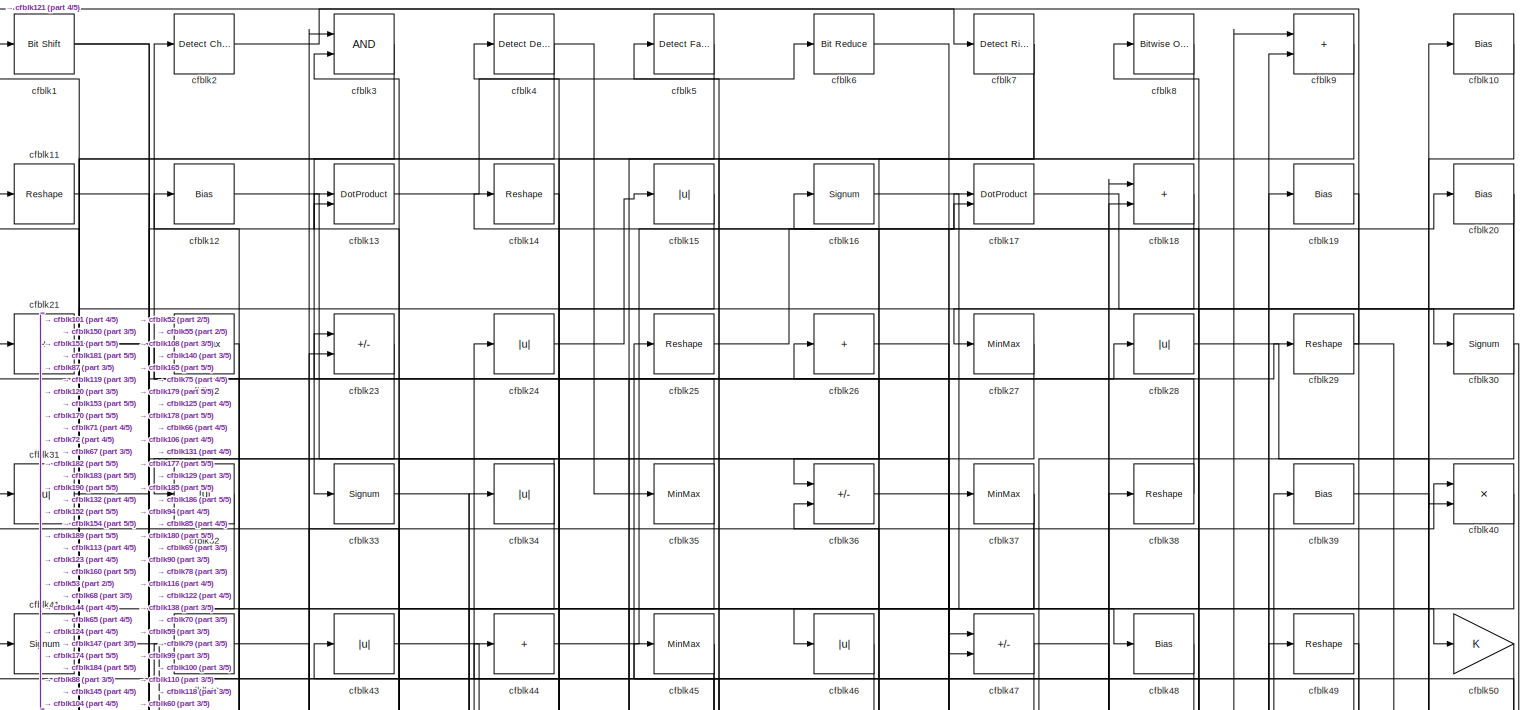
[diagram: root canvas - part 1/5, full width, top band]
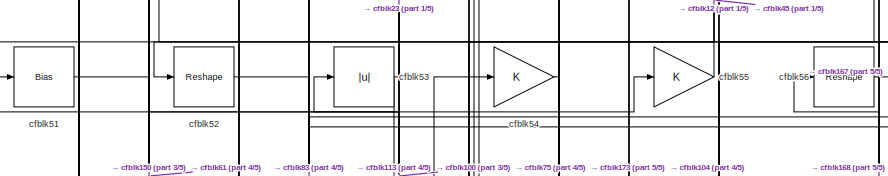
[diagram: root canvas - part 2/5, top left region]
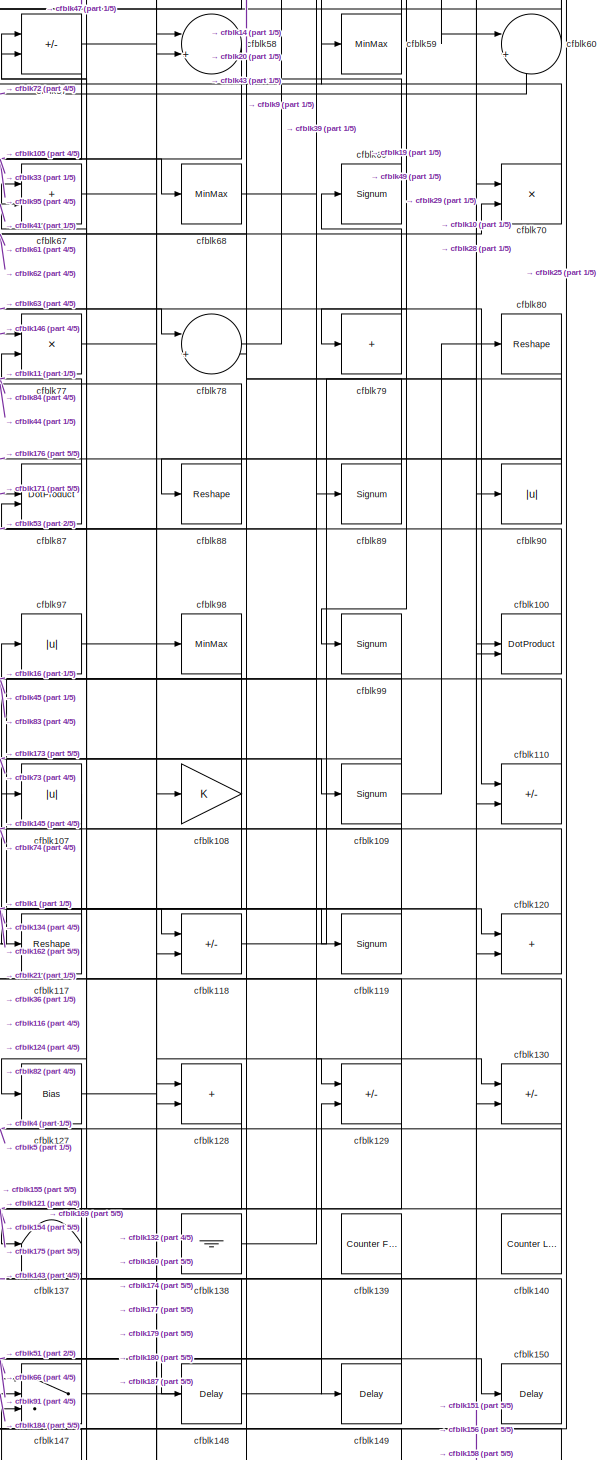
[diagram: root canvas - part 3/5, middle right region]
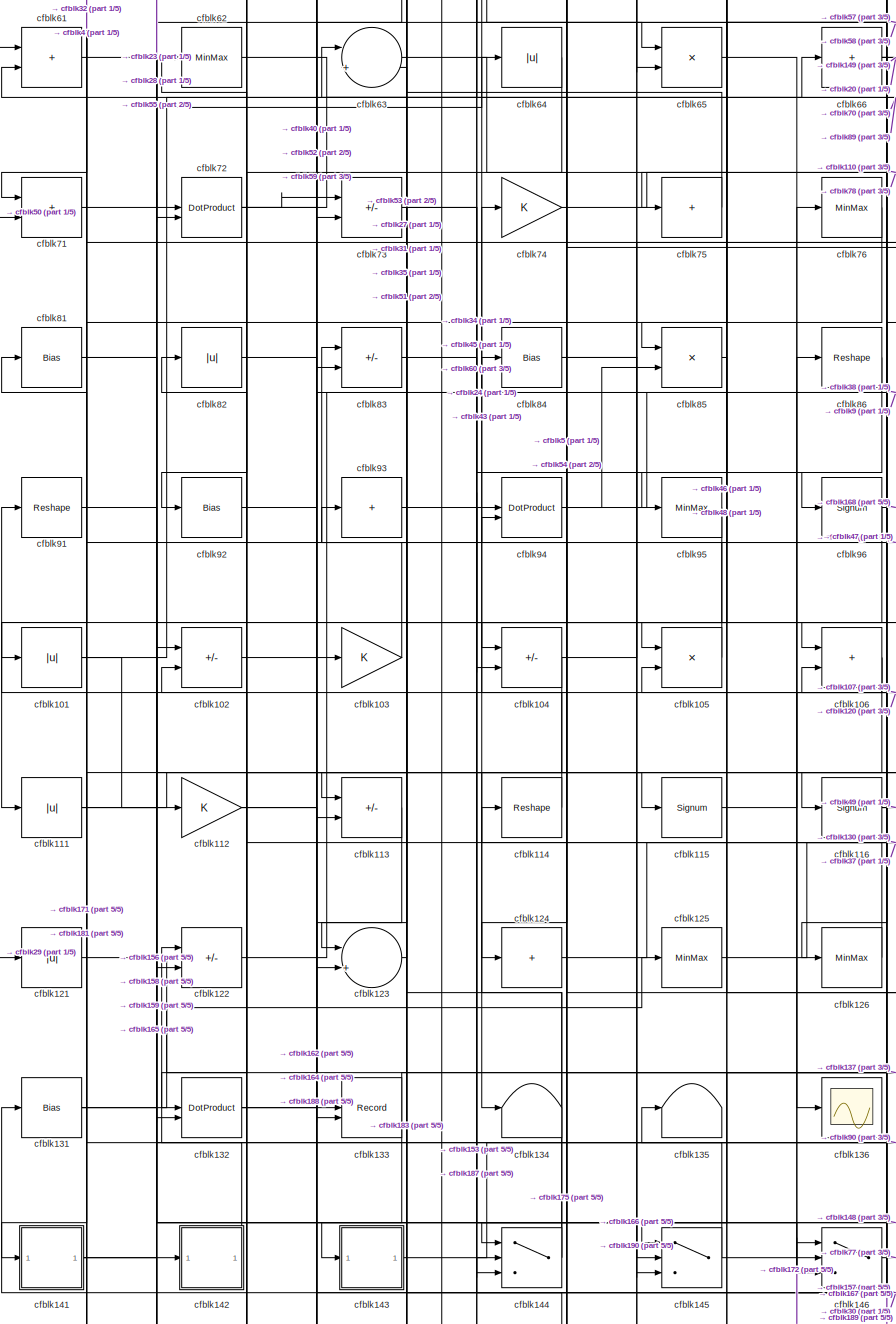
[diagram: root canvas - part 4/5, middle left region]
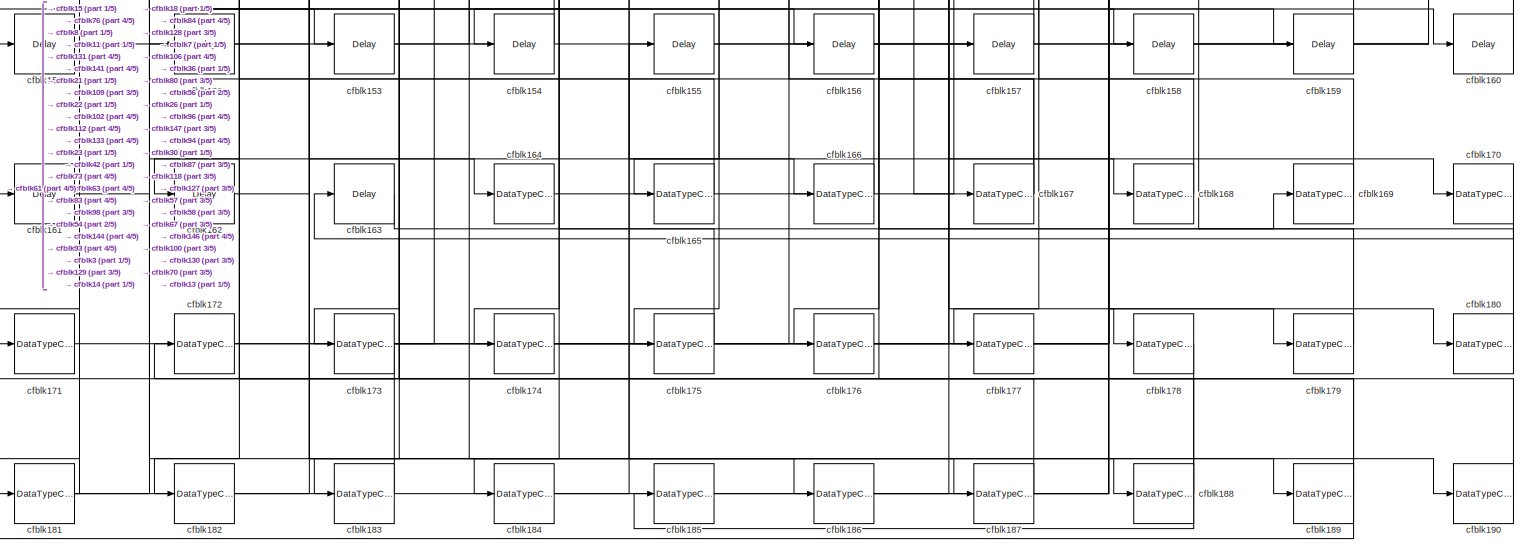
[diagram: root canvas - part 5/5, full width, bottom band]
MODEL slx_a682fed74f7d
KIND model
CONFIG AbsTol = auto
CONFIG EnableMultiTasking = off
CONFIG FixedStep = auto
CONFIG MaxStep = auto
CONFIG MinStep = auto
CONFIG RelTol = 1e-3
CONFIG SampleTimeConstraint = Unconstrained
CONFIG SolverName = VariableStepAuto
CONFIG StartTime = 0.0
CONFIG StopTime = 10.0
BLOCK [Reference] cfblk1  REF=hdlsllib/Logic and Bit
Operations/Bit Shift
  SourceBlock = hdlsllib/Logic and Bit\nOperations/Bit Shift
  SourceType = Bit Shift
BLOCK [Bias] cfblk10
  Bias = 0.0
  SaturateOnIntegerOverflow = off
BLOCK [DotProduct] cfblk100
  OutDataTypeStr = Inherit: Inherit via internal rule
BLOCK [Abs] cfblk101
  SaturateOnIntegerOverflow = off
BLOCK [Sum] cfblk102
  IconShape = rectangular
  Inputs = +-
BLOCK [Gain] cfblk103
BLOCK [Sum] cfblk104
  IconShape = rectangular
  Inputs = +-
BLOCK [Product] cfblk105
  Inputs = */
  RndMeth = Zero
  SaturateOnIntegerOverflow = on
BLOCK [Sum] cfblk106
  IconShape = rectangular
BLOCK [Abs] cfblk107
  SaturateOnIntegerOverflow = off
BLOCK [Gain] cfblk108
BLOCK [Signum] cfblk109
BLOCK [Reshape] cfblk11
BLOCK [Sum] cfblk110
  IconShape = rectangular
  Inputs = +-
BLOCK [Abs] cfblk111
  SaturateOnIntegerOverflow = off
BLOCK [Gain] cfblk112
BLOCK [Sum] cfblk113
  IconShape = rectangular
  Inputs = +-
BLOCK [Reshape] cfblk114
BLOCK [Signum] cfblk115
BLOCK [Signum] cfblk116
BLOCK [Reshape] cfblk117
BLOCK [Sum] cfblk118
  IconShape = rectangular
  Inputs = +-
BLOCK [Signum] cfblk119
BLOCK [Bias] cfblk12
  Bias = 0.0
  SaturateOnIntegerOverflow = off
BLOCK [Sum] cfblk120
  IconShape = rectangular
BLOCK [Abs] cfblk121
  SaturateOnIntegerOverflow = off
BLOCK [Sum] cfblk122
  IconShape = rectangular
  Inputs = +-
BLOCK [Sum] cfblk123
  Inputs = |++
BLOCK [Sum] cfblk124
  IconShape = rectangular
  Inputs = +
BLOCK [MinMax] cfblk125
BLOCK [MinMax] cfblk126
BLOCK [Bias] cfblk127
  Bias = 0.0
  SaturateOnIntegerOverflow = off
BLOCK [Sum] cfblk128
  IconShape = rectangular
BLOCK [Sum] cfblk129
  IconShape = rectangular
  Inputs = +-
BLOCK [DotProduct] cfblk13
  OutDataTypeStr = Inherit: Inherit via internal rule
BLOCK [Sum] cfblk130
  IconShape = rectangular
  Inputs = +-
BLOCK [Bias] cfblk131
  Bias = 0.0
  SaturateOnIntegerOverflow = off
BLOCK [DotProduct] cfblk132
  OutDataTypeStr = Inherit: Inherit via internal rule
BLOCK [Record] cfblk133
  CompatibilityTag = XY
  FileSettingsInternal = {"entries":[{"content":{"excelSettings":{"content":{},"type":"Streamout.ExcelSettings"}},"type":"Streamout.FileSettingStorage","uuid":""}],"packageUris":["http:\/\/schema.mathworks.com\/mf0\/streamout_blocks\/R2020a"],"version":"1.0"}
  Layout = [1 1]
  SignalsInternal = {"entries":[{"content":{"signals":[{"content":{"blockPath":[],"dimensions":[1],"domain":"","lineColor":"#a2142f","plots":[1],"port":1,"signalID":4129,"signalName":"XY Graph:1"},"type":"RecordBlkView.Signal","uuid":""},{"content":{"blockPath":[],"dimensions":[1],"domain":"","lineColor":"#139fff","plots":[1],"port":2,"signalID":4132,"signalName":"XY Graph:2"},"type":"RecordBlkView.Signal","uuid":""}...<+146ch>
  VisualizationBindings = {"xyplotplugin":{"info":[{"series":[{"bindingParametersList":[{"parameter":"X-Axis","signalID":4129,"signalName":"XY Graph:1"},{"parameter":"Y-Axis","signalID":4132,"signalName":"XY Graph:2"}],"seriesID":53244}],"subplotID":1}]}}
  st = -1
BLOCK [Terminator] cfblk134
BLOCK [Terminator] cfblk135
BLOCK [Scope] cfblk136
  Floating = off
  NumInputPorts = 1
  ScopeSpecificationString = Simulink.scopes.TimeScopeBlockCfg('CurrentConfiguration', extmgr.ConfigurationSet(extmgr.Configuration('Core','General UI',true),extmgr.Configuration('Core','Source UI',true),extmgr.Configuration('Sources','WiredSimulink',true,'DataLoggingVariableName','ScopeData2','DataLoggingSaveFormat','Array','DataLoggingLimitDataPoints',true,'DataLoggingDecimation','1'),extmgr.Configuration('Visuals','Time Do...<+868ch>
BLOCK [Terminator] cfblk137
BLOCK [Ground] cfblk138
BLOCK [Reference] cfblk139  REF=hdlsllib/Sources/Counter
Free-Running
  SourceBlock = hdlsllib/Sources/Counter\nFree-Running
  SourceType = Counter Free-Running
BLOCK [Reshape] cfblk14
BLOCK [Reference] cfblk140  REF=hdlsllib/Sources/Counter
Limited
  SourceBlock = hdlsllib/Sources/Counter\nLimited
  SourceType = Counter Limited
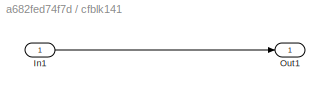
BLOCK [SubSystem] cfblk141
  LibrarySourceBlock = hdlsllib/Ports &\nSubsystems/Subsystem
BLOCK [Inport] cfblk141/In1
BLOCK [Outport] cfblk141/Out1
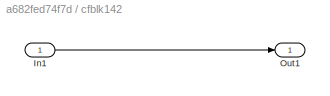
BLOCK [SubSystem] cfblk142
  LibrarySourceBlock = hdlsllib/Ports &\nSubsystems/Subsystem
BLOCK [Inport] cfblk142/In1
BLOCK [Outport] cfblk142/Out1
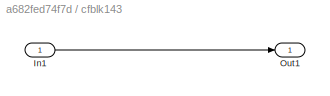
BLOCK [SubSystem] cfblk143
  LibrarySourceBlock = hdlsllib/Ports &\nSubsystems/Subsystem
BLOCK [Inport] cfblk143/In1
BLOCK [Outport] cfblk143/Out1
BLOCK [Switch] cfblk144
  InputSameDT = off
  SaturateOnIntegerOverflow = off
BLOCK [Switch] cfblk145
  InputSameDT = off
  SaturateOnIntegerOverflow = off
BLOCK [Switch] cfblk146
  InputSameDT = off
  SaturateOnIntegerOverflow = off
BLOCK [Switch] cfblk147
  InputSameDT = off
  SaturateOnIntegerOverflow = off
BLOCK [Delay] cfblk148
  InputPortMap = u0
  SampleTime = 1
BLOCK [Delay] cfblk149
  InputPortMap = u0
  SampleTime = 1
BLOCK [Abs] cfblk15
  SaturateOnIntegerOverflow = off
BLOCK [Delay] cfblk150
  InputPortMap = u0
  SampleTime = 1
BLOCK [Delay] cfblk151
  InputPortMap = u0
  SampleTime = 1
BLOCK [Delay] cfblk152
  InputPortMap = u0
  SampleTime = 1
BLOCK [Delay] cfblk153
  InputPortMap = u0
  SampleTime = 1
BLOCK [Delay] cfblk154
  InputPortMap = u0
  SampleTime = 1
BLOCK [Delay] cfblk155
  InputPortMap = u0
  SampleTime = 1
BLOCK [Delay] cfblk156
  InputPortMap = u0
  SampleTime = 1
BLOCK [Delay] cfblk157
  InputPortMap = u0
  SampleTime = 1
BLOCK [Delay] cfblk158
  InputPortMap = u0
  SampleTime = 1
BLOCK [Delay] cfblk159
  InputPortMap = u0
  SampleTime = 1
BLOCK [Signum] cfblk16
BLOCK [Delay] cfblk160
  InputPortMap = u0
  SampleTime = 1
BLOCK [Delay] cfblk161
  InputPortMap = u0
  SampleTime = 1
BLOCK [Delay] cfblk162
  InputPortMap = u0
  SampleTime = 1
BLOCK [Delay] cfblk163
  InputPortMap = u0
  SampleTime = 1
BLOCK [DataTypeConversion] cfblk164
  OutDataTypeStr = uint8
  RndMeth = Floor
  SaturateOnIntegerOverflow = off
BLOCK [DataTypeConversion] cfblk165
  OutDataTypeStr = uint8
  RndMeth = Floor
  SaturateOnIntegerOverflow = off
BLOCK [DataTypeConversion] cfblk166
  OutDataTypeStr = uint8
  RndMeth = Floor
  SaturateOnIntegerOverflow = off
BLOCK [DataTypeConversion] cfblk167
  RndMeth = Floor
  SaturateOnIntegerOverflow = off
BLOCK [DataTypeConversion] cfblk168
  OutDataTypeStr = uint8
  RndMeth = Floor
  SaturateOnIntegerOverflow = off
BLOCK [DataTypeConversion] cfblk169
  OutDataTypeStr = uint8
  RndMeth = Floor
  SaturateOnIntegerOverflow = off
BLOCK [DotProduct] cfblk17
  OutDataTypeStr = Inherit: Inherit via internal rule
BLOCK [DataTypeConversion] cfblk170
  OutDataTypeStr = uint8
  RndMeth = Floor
  SaturateOnIntegerOverflow = off
BLOCK [DataTypeConversion] cfblk171
  OutDataTypeStr = uint8
  RndMeth = Floor
  SaturateOnIntegerOverflow = off
BLOCK [DataTypeConversion] cfblk172
  OutDataTypeStr = uint8
  RndMeth = Floor
  SaturateOnIntegerOverflow = off
BLOCK [DataTypeConversion] cfblk173
  RndMeth = Floor
  SaturateOnIntegerOverflow = off
BLOCK [DataTypeConversion] cfblk174
  OutDataTypeStr = uint8
  RndMeth = Floor
  SaturateOnIntegerOverflow = off
BLOCK [DataTypeConversion] cfblk175
  OutDataTypeStr = uint8
  RndMeth = Floor
  SaturateOnIntegerOverflow = off
BLOCK [DataTypeConversion] cfblk176
  OutDataTypeStr = uint8
  RndMeth = Floor
  SaturateOnIntegerOverflow = off
BLOCK [DataTypeConversion] cfblk177
  OutDataTypeStr = uint8
  RndMeth = Floor
  SaturateOnIntegerOverflow = off
BLOCK [DataTypeConversion] cfblk178
  OutDataTypeStr = uint8
  RndMeth = Floor
  SaturateOnIntegerOverflow = off
BLOCK [DataTypeConversion] cfblk179
  OutDataTypeStr = uint8
  RndMeth = Floor
  SaturateOnIntegerOverflow = off
BLOCK [Sum] cfblk18
  IconShape = rectangular
BLOCK [DataTypeConversion] cfblk180
  OutDataTypeStr = boolean
  RndMeth = Floor
  SaturateOnIntegerOverflow = off
BLOCK [DataTypeConversion] cfblk181
  RndMeth = Floor
  SaturateOnIntegerOverflow = off
BLOCK [DataTypeConversion] cfblk182
  OutDataTypeStr = uint8
  RndMeth = Floor
  SaturateOnIntegerOverflow = off
BLOCK [DataTypeConversion] cfblk183
  OutDataTypeStr = uint8
  RndMeth = Floor
  SaturateOnIntegerOverflow = off
BLOCK [DataTypeConversion] cfblk184
  OutDataTypeStr = uint8
  RndMeth = Floor
  SaturateOnIntegerOverflow = off
BLOCK [DataTypeConversion] cfblk185
  OutDataTypeStr = uint8
  RndMeth = Floor
  SaturateOnIntegerOverflow = off
BLOCK [DataTypeConversion] cfblk186
  OutDataTypeStr = uint8
  RndMeth = Floor
  SaturateOnIntegerOverflow = off
BLOCK [DataTypeConversion] cfblk187
  RndMeth = Floor
  SaturateOnIntegerOverflow = off
BLOCK [DataTypeConversion] cfblk188
  OutDataTypeStr = uint8
  RndMeth = Floor
  SaturateOnIntegerOverflow = off
BLOCK [DataTypeConversion] cfblk189
  RndMeth = Floor
  SaturateOnIntegerOverflow = off
BLOCK [Bias] cfblk19
  Bias = 0.0
  SaturateOnIntegerOverflow = off
BLOCK [DataTypeConversion] cfblk190
  OutDataTypeStr = uint8
  RndMeth = Floor
  SaturateOnIntegerOverflow = off
BLOCK [Reference] cfblk2  REF=simulink/Logic and Bit
Operations/Detect
Change
  LibrarySourceBlock = hdlsllib/Logic and Bit\nOperations/Detect\nChange
  SourceBlock = simulink/Logic and Bit\nOperations/Detect\nChange
  SourceType = Detect Change
BLOCK [Bias] cfblk20
  Bias = 0.0
  SaturateOnIntegerOverflow = off
BLOCK [Sum] cfblk21
  IconShape = rectangular
  Inputs = +
BLOCK [MinMax] cfblk22
BLOCK [Sum] cfblk23
  IconShape = rectangular
  Inputs = +-
BLOCK [Abs] cfblk24
  SaturateOnIntegerOverflow = off
BLOCK [Reshape] cfblk25
BLOCK [Sum] cfblk26
  IconShape = rectangular
  Inputs = +
BLOCK [MinMax] cfblk27
BLOCK [Abs] cfblk28
  SaturateOnIntegerOverflow = off
BLOCK [Reshape] cfblk29
BLOCK [Logic] cfblk3
  AllPortsSameDT = off
  OutDataTypeStr = boolean
BLOCK [Signum] cfblk30
BLOCK [Abs] cfblk31
  SaturateOnIntegerOverflow = off
BLOCK [Abs] cfblk32
  SaturateOnIntegerOverflow = off
BLOCK [Signum] cfblk33
BLOCK [Abs] cfblk34
  SaturateOnIntegerOverflow = off
BLOCK [MinMax] cfblk35
BLOCK [Sum] cfblk36
  IconShape = rectangular
  Inputs = +-
BLOCK [MinMax] cfblk37
BLOCK [Reshape] cfblk38
BLOCK [Bias] cfblk39
  Bias = 0.0
  SaturateOnIntegerOverflow = off
BLOCK [Reference] cfblk4  REF=simulink/Logic and Bit
Operations/Detect
Decrease
  LibrarySourceBlock = hdlsllib/Logic and Bit\nOperations/Detect\nDecrease
  SourceBlock = simulink/Logic and Bit\nOperations/Detect\nDecrease
  SourceType = Detect Decrease
BLOCK [Product] cfblk40
  Inputs = */
  RndMeth = Zero
  SaturateOnIntegerOverflow = on
BLOCK [Signum] cfblk41
BLOCK [Sum] cfblk42
  IconShape = rectangular
  Inputs = +
BLOCK [Abs] cfblk43
  SaturateOnIntegerOverflow = off
BLOCK [Sum] cfblk44
  IconShape = rectangular
  Inputs = +
BLOCK [MinMax] cfblk45
BLOCK [Abs] cfblk46
  SaturateOnIntegerOverflow = off
BLOCK [Sum] cfblk47
  IconShape = rectangular
  Inputs = +-
BLOCK [Bias] cfblk48
  Bias = 0.0
  SaturateOnIntegerOverflow = off
BLOCK [Reshape] cfblk49
BLOCK [Reference] cfblk5  REF=hdlsllib/Logic and Bit
Operations/Detect Fall
Nonpositive
  SourceBlock = hdlsllib/Logic and Bit\nOperations/Detect Fall\nNonpositive
  SourceType = Detect Fall Nonpositive
BLOCK [Gain] cfblk50
BLOCK [Bias] cfblk51
  Bias = 0.0
  SaturateOnIntegerOverflow = off
BLOCK [Reshape] cfblk52
BLOCK [Abs] cfblk53
  SaturateOnIntegerOverflow = off
BLOCK [Gain] cfblk54
BLOCK [Gain] cfblk55
BLOCK [Reshape] cfblk56
BLOCK [Sum] cfblk57
  IconShape = rectangular
  Inputs = +-
BLOCK [Sum] cfblk58
  Inputs = |++
BLOCK [MinMax] cfblk59
BLOCK [Reference] cfblk6  REF=hdlsllib/Logic and Bit
Operations/Bit Reduce
  SourceBlock = hdlsllib/Logic and Bit\nOperations/Bit Reduce
  SourceType = Bit Reduce
BLOCK [Sum] cfblk60
  Inputs = |++
BLOCK [Sum] cfblk61
  IconShape = rectangular
BLOCK [MinMax] cfblk62
BLOCK [Sum] cfblk63
  Inputs = |++
BLOCK [Abs] cfblk64
  SaturateOnIntegerOverflow = off
BLOCK [Product] cfblk65
  Inputs = */
  RndMeth = Zero
  SaturateOnIntegerOverflow = on
BLOCK [Sum] cfblk66
  IconShape = rectangular
  Inputs = +
BLOCK [Sum] cfblk67
  IconShape = rectangular
BLOCK [MinMax] cfblk68
BLOCK [Signum] cfblk69
BLOCK [Reference] cfblk7  REF=hdlsllib/Logic and Bit
Operations/Detect Rise
Nonnegative
  SourceBlock = hdlsllib/Logic and Bit\nOperations/Detect Rise\nNonnegative
  SourceType = Detect Rise Nonnegative
BLOCK [Product] cfblk70
  Inputs = */
  RndMeth = Zero
  SaturateOnIntegerOverflow = on
BLOCK [Sum] cfblk71
  IconShape = rectangular
BLOCK [DotProduct] cfblk72
  OutDataTypeStr = Inherit: Inherit via internal rule
BLOCK [Sum] cfblk73
  IconShape = rectangular
  Inputs = +-
BLOCK [Gain] cfblk74
BLOCK [Sum] cfblk75
  IconShape = rectangular
  Inputs = +
BLOCK [MinMax] cfblk76
BLOCK [Product] cfblk77
  Inputs = */
  RndMeth = Zero
  SaturateOnIntegerOverflow = on
BLOCK [Sum] cfblk78
  Inputs = |++
BLOCK [Sum] cfblk79
  IconShape = rectangular
  Inputs = +
BLOCK [Reference] cfblk8  REF=simulink/Logic and Bit
Operations/Bitwise
Operator
  LibrarySourceBlock = hdlsllib/Logic and Bit\nOperations/Bitwise\nOperator
  SourceBlock = simulink/Logic and Bit\nOperations/Bitwise\nOperator
  SourceType = Bitwise Operator
BLOCK [Reshape] cfblk80
BLOCK [Bias] cfblk81
  Bias = 0.0
  SaturateOnIntegerOverflow = off
BLOCK [Abs] cfblk82
  SaturateOnIntegerOverflow = off
BLOCK [Sum] cfblk83
  IconShape = rectangular
  Inputs = +-
BLOCK [Bias] cfblk84
  Bias = 0.0
  SaturateOnIntegerOverflow = off
BLOCK [Product] cfblk85
  Inputs = */
  RndMeth = Zero
  SaturateOnIntegerOverflow = on
BLOCK [Reshape] cfblk86
BLOCK [DotProduct] cfblk87
  OutDataTypeStr = Inherit: Inherit via internal rule
BLOCK [Reshape] cfblk88
BLOCK [Signum] cfblk89
BLOCK [Sum] cfblk9
  IconShape = rectangular
BLOCK [Abs] cfblk90
  SaturateOnIntegerOverflow = off
BLOCK [Reshape] cfblk91
BLOCK [Bias] cfblk92
  Bias = 0.0
  SaturateOnIntegerOverflow = off
BLOCK [Sum] cfblk93
  IconShape = rectangular
  Inputs = +
BLOCK [DotProduct] cfblk94
  OutDataTypeStr = Inherit: Inherit via internal rule
BLOCK [MinMax] cfblk95
BLOCK [Signum] cfblk96
BLOCK [Abs] cfblk97
  SaturateOnIntegerOverflow = off
BLOCK [MinMax] cfblk98
BLOCK [Signum] cfblk99
LINE cfblk100:1 -> cfblk53:1
NET cfblk101:1 -> cfblk112:1, cfblk66:1
LINE cfblk102:1 -> cfblk164:1
LINE cfblk103:1 -> cfblk62:1
NET cfblk104:1 -> cfblk141:1, cfblk29:1
LINE cfblk105:1 -> cfblk81:1
NET cfblk106:1 -> cfblk105:2, cfblk116:1
LINE cfblk107:1 -> cfblk134:1
NET cfblk108:1 -> cfblk127:1, cfblk45:1
NET cfblk109:1 -> cfblk162:1, cfblk80:1, cfblk83:1
LINE cfblk10:1 -> cfblk40:2
LINE cfblk110:1 -> cfblk16:1
NET cfblk111:1 -> cfblk115:1, cfblk64:1
NET cfblk112:1 -> cfblk123:2, cfblk188:1
LINE cfblk113:1 -> cfblk133:2
LINE cfblk114:1 -> cfblk91:1
LINE cfblk115:1 -> cfblk86:1
NET cfblk116:1 -> cfblk120:1, cfblk49:1
LINE cfblk117:1 -> cfblk97:1
LINE cfblk118:1 -> cfblk10:1
LINE cfblk119:1 -> cfblk57:1
LINE cfblk11:1 -> cfblk170:1
LINE cfblk120:1 -> cfblk74:1
LINE cfblk121:1 -> cfblk137:1
LINE cfblk122:1 -> cfblk9:2
LINE cfblk123:1 -> cfblk63:1
LINE cfblk124:1 -> cfblk89:1
LINE cfblk125:1 -> cfblk37:1
LINE cfblk126:1 -> cfblk114:1
LINE cfblk127:1 -> cfblk160:1
LINE cfblk128:1 -> cfblk175:1
NET cfblk129:1 -> cfblk154:1, cfblk67:1
LINE cfblk12:1 -> cfblk47:2
NET cfblk130:1 -> cfblk143:1, cfblk82:1
NET cfblk131:1 -> cfblk125:1, cfblk156:1
NET cfblk132:1 -> cfblk40:1, cfblk59:1
LINE cfblk138:1 -> cfblk19:1
LINE cfblk139:1 -> cfblk147:1
LINE cfblk13:1 -> cfblk6:1
LINE cfblk140:1 -> cfblk5:1
LINE cfblk141/In1:1 -> cfblk141/Out1:1
NET cfblk141:1 -> cfblk158:1, cfblk159:1
LINE cfblk142/In1:1 -> cfblk142/Out1:1
LINE cfblk142:1 -> cfblk122:1
LINE cfblk143/In1:1 -> cfblk143/Out1:1
LINE cfblk143:1 -> cfblk90:1
NET cfblk144:1 -> cfblk24:1, cfblk31:1
NET cfblk145:1 -> cfblk107:1, cfblk135:1
LINE cfblk146:1 -> cfblk77:1
NET cfblk147:1 -> cfblk129:2, cfblk4:1
LINE cfblk148:1 -> cfblk72:1
LINE cfblk149:1 -> cfblk57:2
LINE cfblk14:1 -> cfblk174:1
LINE cfblk150:1 -> cfblk1:1
LINE cfblk151:1 -> cfblk70:1
LINE cfblk152:1 -> cfblk23:2
LINE cfblk153:1 -> cfblk144:2
LINE cfblk154:1 -> cfblk3:1
LINE cfblk155:1 -> cfblk147:3
LINE cfblk156:1 -> cfblk100:1
LINE cfblk157:1 -> cfblk94:1
LINE cfblk158:1 -> cfblk130:2
LINE cfblk159:1 -> cfblk146:2
LINE cfblk15:1 -> cfblk151:1
LINE cfblk160:1 -> cfblk13:2
LINE cfblk161:1 -> cfblk186:1
LINE cfblk162:1 -> cfblk73:2
LINE cfblk163:1 -> cfblk169:1
LINE cfblk164:1 -> cfblk157:1
LINE cfblk165:1 -> cfblk102:1
LINE cfblk166:1 -> cfblk102:2
NET cfblk167:1 -> cfblk106:2, cfblk146:1
LINE cfblk168:1 -> cfblk56:1
LINE cfblk169:1 -> cfblk87:2
LINE cfblk16:1 -> cfblk48:1
LINE cfblk170:1 -> cfblk163:1
LINE cfblk171:1 -> cfblk87:1
LINE cfblk172:1 -> cfblk76:1
NET cfblk173:1 -> cfblk172:1, cfblk54:1, cfblk58:2
LINE cfblk174:1 -> cfblk98:1
LINE cfblk175:1 -> cfblk94:2
LINE cfblk176:1 -> cfblk128:1
LINE cfblk177:1 -> cfblk128:2
LINE cfblk178:1 -> cfblk185:1
LINE cfblk179:1 -> cfblk26:1
LINE cfblk17:1 -> cfblk30:1
LINE cfblk180:1 -> cfblk8:1
NET cfblk181:1 -> cfblk133:1, cfblk152:1, cfblk21:1
LINE cfblk182:1 -> cfblk155:1
LINE cfblk183:1 -> cfblk22:1
LINE cfblk184:1 -> cfblk147:2
LINE cfblk185:1 -> cfblk18:1
LINE cfblk186:1 -> cfblk18:2
NET cfblk187:1 -> cfblk118:2, cfblk63:2
LINE cfblk188:1 -> cfblk93:1
NET cfblk189:1 -> cfblk161:1, cfblk36:2, cfblk61:1
LINE cfblk18:1 -> cfblk184:1
LINE cfblk190:1 -> cfblk42:1
LINE cfblk19:1 -> cfblk79:1
NET cfblk1:1 -> cfblk119:1, cfblk50:1
NET cfblk20:1 -> cfblk27:1, cfblk78:2
NET cfblk21:1 -> cfblk120:2, cfblk153:1
LINE cfblk22:1 -> cfblk182:1
LINE cfblk23:1 -> cfblk72:2
LINE cfblk24:1 -> cfblk15:1
LINE cfblk25:1 -> cfblk17:2
LINE cfblk26:1 -> cfblk178:1
LINE cfblk27:1 -> cfblk123:1
LINE cfblk28:1 -> cfblk110:2
NET cfblk29:1 -> cfblk121:1, cfblk60:1
LINE cfblk2:1 -> cfblk7:1
NET cfblk30:1 -> cfblk131:1, cfblk177:1
LINE cfblk31:1 -> cfblk13:1
LINE cfblk32:1 -> cfblk101:1
LINE cfblk33:1 -> cfblk68:1
NET cfblk34:1 -> cfblk144:3, cfblk32:1
NET cfblk35:1 -> cfblk113:1, cfblk3:2
LINE cfblk36:1 -> cfblk118:1
NET cfblk37:1 -> cfblk132:1, cfblk145:2
LINE cfblk38:1 -> cfblk2:1
LINE cfblk39:1 -> cfblk100:2
LINE cfblk3:1 -> cfblk33:1
LINE cfblk40:1 -> cfblk46:1
LINE cfblk41:1 -> cfblk67:2
LINE cfblk42:1 -> cfblk189:1
LINE cfblk43:1 -> cfblk65:1
LINE cfblk44:1 -> cfblk17:1
NET cfblk45:1 -> cfblk104:2, cfblk52:1
LINE cfblk46:1 -> cfblk75:1
NET cfblk47:1 -> cfblk106:1, cfblk129:1
LINE cfblk48:1 -> cfblk85:1
LINE cfblk49:1 -> cfblk99:1
NET cfblk4:1 -> cfblk35:1, cfblk71:1
LINE cfblk50:1 -> cfblk71:2
LINE cfblk51:1 -> cfblk150:1
LINE cfblk52:1 -> cfblk83:2
NET cfblk53:1 -> cfblk113:2, cfblk23:1
LINE cfblk54:1 -> cfblk104:1
LINE cfblk55:1 -> cfblk12:1
LINE cfblk56:1 -> cfblk167:1
NET cfblk57:1 -> cfblk132:2, cfblk179:1, cfblk95:1
LINE cfblk58:1 -> cfblk105:1
LINE cfblk59:1 -> cfblk41:1
LINE cfblk5:1 -> cfblk124:1
LINE cfblk60:1 -> cfblk25:1
LINE cfblk61:1 -> cfblk55:1
LINE cfblk62:1 -> cfblk70:2
LINE cfblk63:1 -> cfblk110:1
LINE cfblk64:1 -> cfblk92:1
LINE cfblk65:1 -> cfblk136:1
NET cfblk66:1 -> cfblk126:1, cfblk149:1, cfblk20:1
LINE cfblk67:1 -> cfblk180:1
LINE cfblk68:1 -> cfblk130:1
LINE cfblk69:1 -> cfblk43:1
LINE cfblk6:1 -> cfblk47:1
LINE cfblk70:1 -> cfblk39:1
LINE cfblk71:1 -> cfblk28:1
NET cfblk72:1 -> cfblk34:1, cfblk60:2, cfblk73:1
NET cfblk73:1 -> cfblk109:1, cfblk96:1
LINE cfblk74:1 -> cfblk78:1
LINE cfblk75:1 -> cfblk51:1
LINE cfblk76:1 -> cfblk171:1
LINE cfblk77:1 -> cfblk108:1
LINE cfblk78:1 -> cfblk9:1
LINE cfblk79:1 -> cfblk69:1
NET cfblk7:1 -> cfblk165:1, cfblk36:1
LINE cfblk80:1 -> cfblk176:1
NET cfblk81:1 -> cfblk142:1, cfblk146:3
LINE cfblk82:1 -> cfblk103:1
NET cfblk83:1 -> cfblk145:3, cfblk183:1
NET cfblk84:1 -> cfblk166:1, cfblk190:1, cfblk77:2
LINE cfblk85:1 -> cfblk145:1
LINE cfblk86:1 -> cfblk144:1
LINE cfblk87:1 -> cfblk11:1
LINE cfblk88:1 -> cfblk44:1
LINE cfblk89:1 -> cfblk61:2
LINE cfblk8:1 -> cfblk181:1
NET cfblk90:1 -> cfblk14:1, cfblk88:1
LINE cfblk91:1 -> cfblk148:1
LINE cfblk92:1 -> cfblk84:1
LINE cfblk93:1 -> cfblk187:1
NET cfblk94:1 -> cfblk38:1, cfblk85:2
LINE cfblk95:1 -> cfblk122:2
NET cfblk96:1 -> cfblk111:1, cfblk168:1
LINE cfblk97:1 -> cfblk58:1
LINE cfblk98:1 -> cfblk173:1
LINE cfblk99:1 -> cfblk117:1
LINE cfblk9:1 -> cfblk65:2
note: NET lines group one-source signal fan-out (src -> all destinations, sorted); 1:1 wires keep LINE
